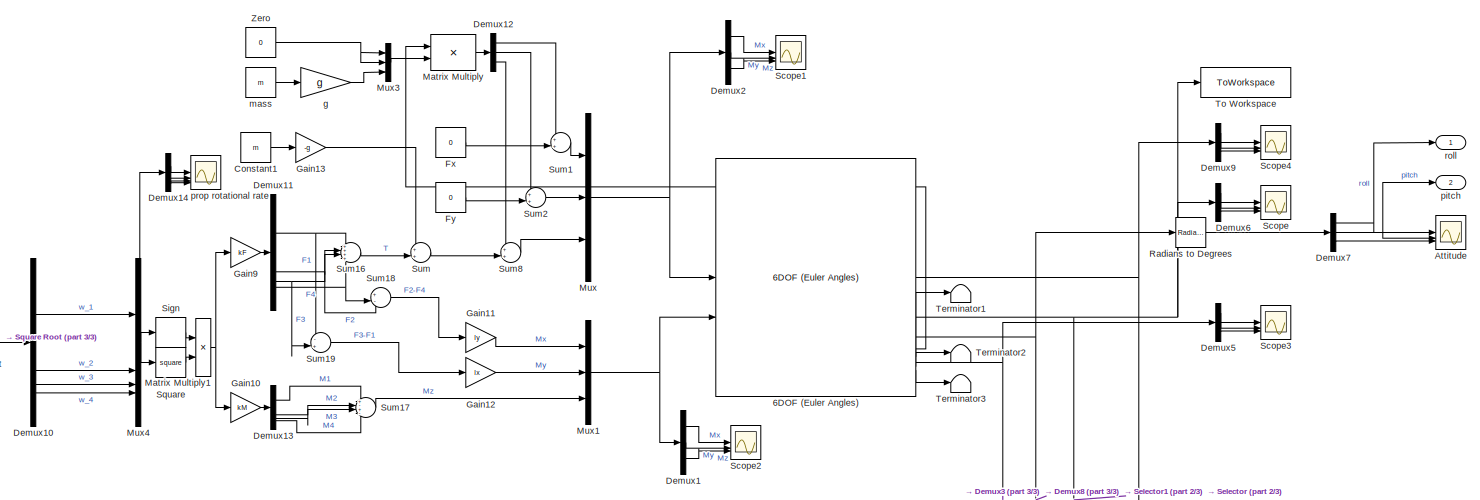
[diagram: root canvas - part 1/3, middle right region]
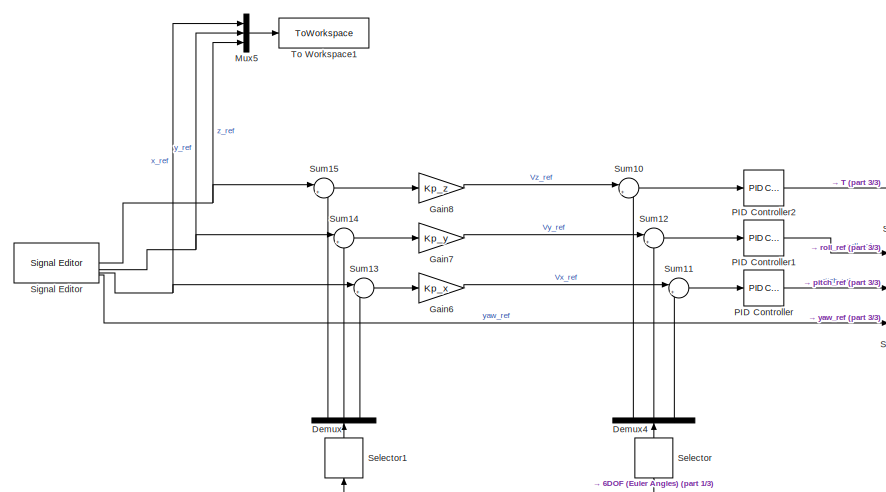
[diagram: root canvas - part 2/3, middle left region]
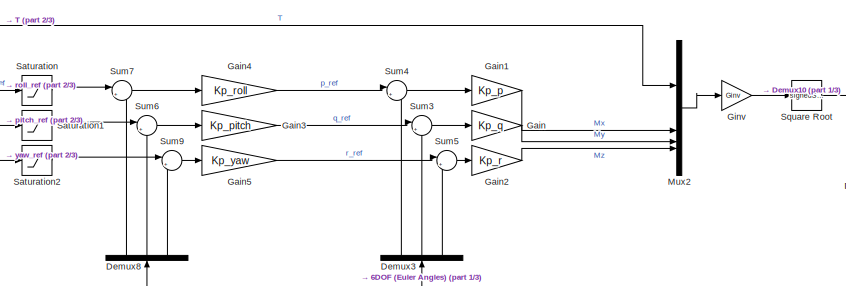
[diagram: root canvas - part 3/3, central region]
MODEL slx_acef34b69b9c
KIND model
CONFIG AbsTol = auto
CONFIG EnableMultiTasking = off
CONFIG FixedStep = 0.01
CONFIG MaxStep = auto
CONFIG MinStep = auto
CONFIG RelTol = 1e-3
CONFIG SampleTimeConstraint = Unconstrained
CONFIG SolverName = FixedStepAuto
CONFIG StartTime = 0.0
CONFIG StopTime = 10
BLOCK [Reference] 6DOF (Euler Angles)  REF=shared6dof/6DOF (Euler Angles)
  LibrarySourceBlock = aerolib6dof2/6DOF (Euler Angles)
  SourceBlock = shared6dof/6DOF (Euler Angles)
  SourceType = 6DOF EoM (Body Axis)
BLOCK [Scope] Attitude
  Floating = off
  NumInputPorts = 3
  ScopeSpecificationString = Simulink.scopes.TimeScopeBlockCfg('CurrentConfiguration', extmgr.ConfigurationSet(extmgr.Configuration('Core','General UI',true),extmgr.Configuration('Core','Source UI',true),extmgr.Configuration('Sources','WiredSimulink',true,'DataLoggingVariableName','ScopeData1'),extmgr.Configuration('Visuals','Time Domain',true,'SerializedDisplays',{struct('MinYLimReal','-75.87056','MaxYLimReal','76.82892','YL...<+2775ch>
BLOCK [Constant] Constant1
  Value = m
BLOCK [Demux] Demux
  NameLocation = right
  Outputs = 3
BLOCK [Demux] Demux1
  Outputs = 3
BLOCK [Demux] Demux10
BLOCK [Demux] Demux11
BLOCK [Demux] Demux12
  Outputs = 3
BLOCK [Demux] Demux13
BLOCK [Demux] Demux14
BLOCK [Demux] Demux2
  Outputs = 3
BLOCK [Demux] Demux3
  NameLocation = right
  Outputs = 3
BLOCK [Demux] Demux4
  NameLocation = right
  Outputs = 3
BLOCK [Demux] Demux5
  Outputs = 3
BLOCK [Demux] Demux6
  Outputs = 3
BLOCK [Demux] Demux7
  Outputs = 3
BLOCK [Demux] Demux8
  NameLocation = right
  Outputs = 3
BLOCK [Demux] Demux9
  Outputs = 3
BLOCK [Constant] Fx
  Value = 0
BLOCK [Constant] Fy
  Value = 0
BLOCK [Gain] Gain
  Gain = Kp_q
BLOCK [Gain] Gain1
  Gain = Kp_p
BLOCK [Gain] Gain10
  Gain = kM
BLOCK [Gain] Gain11
  Gain = ly
BLOCK [Gain] Gain12
  Gain = lx
BLOCK [Gain] Gain13
  Gain = -g
BLOCK [Gain] Gain2
  Gain = Kp_r
BLOCK [Gain] Gain3
  Gain = Kp_pitch
BLOCK [Gain] Gain4
  Gain = Kp_roll
BLOCK [Gain] Gain5
  Gain = Kp_yaw
BLOCK [Gain] Gain6
  Gain = Kp_x
BLOCK [Gain] Gain7
  Gain = Kp_y
BLOCK [Gain] Gain8
  Gain = Kp_z
BLOCK [Gain] Gain9
  Gain = kF
BLOCK [Gain] Ginv
  Gain = Ginv
  Multiplication = Matrix(K*u)
BLOCK [Product] Matrix Multiply
  Inputs = **
  Multiplication = Matrix(*)
BLOCK [Product] Matrix Multiply1
BLOCK [Mux] Mux
  DisplayOption = bar
  Inputs = 3
BLOCK [Mux] Mux1
  DisplayOption = bar
  Inputs = 3
BLOCK [Mux] Mux2
  DisplayOption = bar
BLOCK [Mux] Mux3
  DisplayOption = bar
  Inputs = 3
BLOCK [Mux] Mux4
  DisplayOption = bar
BLOCK [Mux] Mux5
  DisplayOption = bar
  Inputs = 3
BLOCK [Reference] PID Controller  REF=slpidlib/PID Controller
  LibrarySourceBlock = simulink/Continuous/PID Controller
  SourceBlock = slpidlib/PID Controller
  SourceType = PID 1dof
BLOCK [Reference] PID Controller1  REF=slpidlib/PID Controller
  LibrarySourceBlock = simulink/Continuous/PID Controller
  SourceBlock = slpidlib/PID Controller
  SourceType = PID 1dof
BLOCK [Reference] PID Controller2  REF=slpidlib/PID Controller
  LibrarySourceBlock = simulink/Continuous/PID Controller
  SourceBlock = slpidlib/PID Controller
  SourceType = PID 1dof
BLOCK [Reference] Radians to Degrees  REF=simulink_extras/Transformations/Radians
to Degrees
  SourceBlock = simulink_extras/Transformations/Radians\nto Degrees
  SourceType = RadiansToDegrees
BLOCK [Saturate] Saturation
  LowerLimit = -pi/4
  UpperLimit = pi/4
BLOCK [Saturate] Saturation1
  LowerLimit = -pi/4
  UpperLimit = pi/4
BLOCK [Saturate] Saturation2
  LowerLimit = -pi
  UpperLimit = pi
BLOCK [Scope] Scope
  Floating = off
  NumInputPorts = 3
  ScopeSpecificationString = Simulink.scopes.TimeScopeBlockCfg('CurrentConfiguration', extmgr.ConfigurationSet(extmgr.Configuration('Core','General UI',true),extmgr.Configuration('Core','Source UI',true),extmgr.Configuration('Sources','WiredSimulink',true,'DataLoggingVariableName','ScopeData1'),extmgr.Configuration('Visuals','Time Domain',true,'SerializedDisplays',{struct('MinYLimReal','-0.3931','MaxYLimReal','3.5379','YLabel...<+2775ch>
BLOCK [Scope] Scope1
  Floating = off
  NumInputPorts = 3
  ScopeSpecificationString = Simulink.scopes.TimeScopeBlockCfg('CurrentConfiguration', extmgr.ConfigurationSet(extmgr.Configuration('Core','General UI',true),extmgr.Configuration('Core','Source UI',true),extmgr.Configuration('Sources','WiredSimulink',true,'DataLoggingVariableName','ScopeData1'),extmgr.Configuration('Visuals','Time Domain',true,'SerializedDisplays',{struct('MinYLimReal','-415.04945','MaxYLimReal','570.84994','...<+2965ch>
BLOCK [Scope] Scope2
  Floating = off
  NumInputPorts = 3
  ScopeSpecificationString = Simulink.scopes.TimeScopeBlockCfg('CurrentConfiguration', extmgr.ConfigurationSet(extmgr.Configuration('Core','General UI',true),extmgr.Configuration('Core','Source UI',true),extmgr.Configuration('Sources','WiredSimulink',true,'DataLoggingVariableName','ScopeData2'),extmgr.Configuration('Visuals','Time Domain',true,'SerializedDisplays',{struct('MinYLimReal','-101.61688','MaxYLimReal','101.61688','...<+1521ch>
BLOCK [Scope] Scope3
  Floating = off
  NumInputPorts = 3
  ScopeSpecificationString = Simulink.scopes.TimeScopeBlockCfg('CurrentConfiguration', extmgr.ConfigurationSet(extmgr.Configuration('Core','General UI',true),extmgr.Configuration('Core','Source UI',true),extmgr.Configuration('Sources','WiredSimulink',true,'DataLoggingVariableName','ScopeData1'),extmgr.Configuration('Visuals','Time Domain',true,'SerializedDisplays',{struct('MinYLimReal','-4.12012','MaxYLimReal','6.72803','YLab...<+2752ch>
BLOCK [Scope] Scope4
  Floating = off
  NumInputPorts = 3
  ScopeSpecificationString = Simulink.scopes.TimeScopeBlockCfg('CurrentConfiguration', extmgr.ConfigurationSet(extmgr.Configuration('Core','General UI',true),extmgr.Configuration('Core','Source UI',true),extmgr.Configuration('Sources','WiredSimulink',true,'DataLoggingVariableName','ScopeData2'),extmgr.Configuration('Visuals','Time Domain',true,'SerializedDisplays',{struct('MinYLimReal','-0.3508','MaxYLimReal','2.24549','YLabe...<+2750ch>
BLOCK [Selector] Selector
  IndexOptions = Index vector (dialog)
  Indices = [3 2 1]
  InputPortWidth = 3
  NameLocation = right
  OutputSizes = 1
BLOCK [Selector] Selector1
  IndexOptions = Index vector (dialog)
  Indices = [3 2 1]
  InputPortWidth = 3
  NameLocation = right
  OutputSizes = 1
BLOCK [Signum] Sign
BLOCK [Reference] Signal Editor  REF=SignalEditorBlockLib/Signal Editor
  LibrarySourceBlock = simulink/Sources/Signal Editor
  SourceBlock = SignalEditorBlockLib/Signal Editor
  SourceType = SignalEditor
  UserDataPersistent = on
BLOCK [Math] Square
  Operator = square
BLOCK [Sqrt] Square Root
  Operator = signedSqrt
  OutputSignalType = real
BLOCK [Sum] Sum
  Inputs = ++|
BLOCK [Sum] Sum1
  Inputs = ++|
BLOCK [Sum] Sum10
  Inputs = |+-
BLOCK [Sum] Sum11
  Inputs = |+-
BLOCK [Sum] Sum12
  Inputs = |+-
BLOCK [Sum] Sum13
  Inputs = |+-
BLOCK [Sum] Sum14
  Inputs = |+-
BLOCK [Sum] Sum15
  Inputs = |+-
BLOCK [Sum] Sum16
  Inputs = ++++
BLOCK [Sum] Sum17
  Inputs = +-+-
BLOCK [Sum] Sum18
  Inputs = +-|
BLOCK [Sum] Sum19
  Inputs = -+|
BLOCK [Sum] Sum2
  Inputs = ++|
BLOCK [Sum] Sum3
  Inputs = |+-
BLOCK [Sum] Sum4
  Inputs = |+-
BLOCK [Sum] Sum5
  Inputs = |+-
BLOCK [Sum] Sum6
  Inputs = |+-
BLOCK [Sum] Sum7
  Inputs = |+-
BLOCK [Sum] Sum8
  Inputs = ++|
BLOCK [Sum] Sum9
  Inputs = |+-
BLOCK [Terminator] Terminator1
BLOCK [Terminator] Terminator2
BLOCK [Terminator] Terminator3
BLOCK [ToWorkspace] To Workspace
  FixptAsFi = on
  MaxDataPoints = inf
  SampleTime = -1
  SaveFormat = Timeseries
  VariableName = output
BLOCK [ToWorkspace] To Workspace1
  FixptAsFi = on
  MaxDataPoints = inf
  SampleTime = -1
  SaveFormat = Timeseries
  VariableName = reference
BLOCK [Constant] Zero
  OutDataTypeStr = Inherit: Inherit via back propagation
  Value = 0
BLOCK [Gain] g
  Gain = g
BLOCK [Constant] mass
  Value = m
BLOCK [Outport] pitch
  Port = 2
BLOCK [Scope] prop rotational rate
  Floating = off
  NumInputPorts = 4
  ScopeSpecificationString = Simulink.scopes.TimeScopeBlockCfg('CurrentConfiguration', extmgr.ConfigurationSet(extmgr.Configuration('Core','General UI',true),extmgr.Configuration('Core','Source UI',true),extmgr.Configuration('Sources','WiredSimulink',true,'DataLoggingVariableName','ScopeData1'),extmgr.Configuration('Visuals','Time Domain',true,'SerializedDisplays',{struct('MinYLimReal','-4.16863','MaxYLimReal','8.15459','YLab...<+3581ch>
BLOCK [Outport] roll
NET 6DOF (Euler Angles):1 -> Demux9:1, Selector:1
NET 6DOF (Euler Angles):2 -> Demux6:1, Selector1:1, To Workspace:1
NET 6DOF (Euler Angles):3 -> Demux8:1, Radians to Degrees:1
LINE 6DOF (Euler Angles):4 -> Matrix Multiply:1
LINE 6DOF (Euler Angles):5 -> Terminator1:1
NET 6DOF (Euler Angles):6 -> Demux3:1, Demux5:1
LINE 6DOF (Euler Angles):7 -> Terminator2:1
LINE 6DOF (Euler Angles):8 -> Terminator3:1
LINE Constant1:1 -> Gain13:1
LINE Demux10:1 -> Mux4:1
LINE Demux10:2 -> Mux4:2
LINE Demux10:3 -> Mux4:3
LINE Demux10:4 -> Mux4:4
NET Demux11:1 -> Sum16:1, Sum19:1
NET Demux11:2 -> Sum16:2, Sum18:1
NET Demux11:3 -> Sum16:3, Sum19:2
NET Demux11:4 -> Sum16:4, Sum18:2
LINE Demux12:1 -> Sum1:1
LINE Demux12:2 -> Sum2:1
LINE Demux12:3 -> Sum8:1
LINE Demux13:1 -> Sum17:1
LINE Demux13:2 -> Sum17:2
LINE Demux13:3 -> Sum17:3
LINE Demux13:4 -> Sum17:4
LINE Demux14:1 -> prop rotational rate:1
LINE Demux14:2 -> prop rotational rate:2
LINE Demux14:3 -> prop rotational rate:3
LINE Demux14:4 -> prop rotational rate:4
LINE Demux1:1 -> Scope2:1
LINE Demux1:2 -> Scope2:2
LINE Demux1:3 -> Scope2:3
LINE Demux2:1 -> Scope1:1
LINE Demux2:2 -> Scope1:2
LINE Demux2:3 -> Scope1:3
LINE Demux3:1 -> Sum4:2
LINE Demux3:2 -> Sum3:2
LINE Demux3:3 -> Sum5:2
LINE Demux4:1 -> Sum10:2
LINE Demux4:2 -> Sum12:2
LINE Demux4:3 -> Sum11:2
LINE Demux5:1 -> Scope3:1
LINE Demux5:2 -> Scope3:2
LINE Demux5:3 -> Scope3:3
LINE Demux6:1 -> Scope:1
LINE Demux6:2 -> Scope:2
LINE Demux6:3 -> Scope:3
NET Demux7:1 -> Attitude:1, roll:1
NET Demux7:2 -> Attitude:2, pitch:1
LINE Demux7:3 -> Attitude:3
LINE Demux8:1 -> Sum7:2
LINE Demux8:2 -> Sum6:2
LINE Demux8:3 -> Sum9:2
LINE Demux9:1 -> Scope4:1
LINE Demux9:2 -> Scope4:2
LINE Demux9:3 -> Scope4:3
LINE Demux:1 -> Sum15:2
LINE Demux:2 -> Sum14:2
LINE Demux:3 -> Sum13:2
LINE Fx:1 -> Sum1:2
LINE Fy:1 -> Sum2:2
LINE Gain10:1 -> Demux13:1
LINE Gain11:1 -> Mux1:1
LINE Gain12:1 -> Mux1:2
LINE Gain13:1 -> Sum:1
LINE Gain1:1 -> Mux2:2
LINE Gain2:1 -> Mux2:4
LINE Gain3:1 -> Sum3:1
LINE Gain4:1 -> Sum4:1
LINE Gain5:1 -> Sum5:1
LINE Gain6:1 -> Sum11:1
LINE Gain7:1 -> Sum12:1
LINE Gain8:1 -> Sum10:1
LINE Gain9:1 -> Demux11:1
LINE Gain:1 -> Mux2:3
LINE Ginv:1 -> Square Root:1
NET Matrix Multiply1:1 -> Gain10:1, Gain9:1
LINE Matrix Multiply:1 -> Demux12:1
NET Mux1:1 -> 6DOF (Euler Angles):2, Demux1:1
LINE Mux2:1 -> Ginv:1
LINE Mux3:1 -> Matrix Multiply:2
NET Mux4:1 -> Demux14:1, Sign:1, Square:1
LINE Mux5:1 -> To Workspace1:1
NET Mux:1 -> 6DOF (Euler Angles):1, Demux2:1
LINE PID Controller1:1 -> Saturation:1
LINE PID Controller2:1 -> Mux2:1
LINE PID Controller:1 -> Saturation1:1
LINE Radians to Degrees:1 -> Demux7:1
LINE Saturation1:1 -> Sum6:1
LINE Saturation2:1 -> Sum9:1
LINE Saturation:1 -> Sum7:1
LINE Selector1:1 -> Demux:1
LINE Selector:1 -> Demux4:1
LINE Sign:1 -> Matrix Multiply1:1
NET Signal Editor:1 -> Mux5:3, Sum15:1
NET Signal Editor:2 -> Mux5:2, Sum14:1
NET Signal Editor:3 -> Mux5:1, Sum13:1
LINE Signal Editor:4 -> Saturation2:1
LINE Square Root:1 -> Demux10:1
LINE Square:1 -> Matrix Multiply1:2
LINE Sum10:1 -> PID Controller2:1
LINE Sum11:1 -> PID Controller:1
LINE Sum12:1 -> PID Controller1:1
LINE Sum13:1 -> Gain6:1
LINE Sum14:1 -> Gain7:1
LINE Sum15:1 -> Gain8:1
LINE Sum16:1 -> Sum:2
LINE Sum17:1 -> Mux1:3
LINE Sum18:1 -> Gain11:1
LINE Sum19:1 -> Gain12:1
LINE Sum1:1 -> Mux:1
LINE Sum2:1 -> Mux:2
LINE Sum3:1 -> Gain:1
LINE Sum4:1 -> Gain1:1
LINE Sum5:1 -> Gain2:1
LINE Sum6:1 -> Gain3:1
LINE Sum7:1 -> Gain4:1
LINE Sum8:1 -> Mux:3
LINE Sum9:1 -> Gain5:1
LINE Sum:1 -> Sum8:2
NET Zero:1 -> Mux3:1, Mux3:2
LINE g:1 -> Mux3:3
LINE mass:1 -> g:1
note: NET lines group one-source signal fan-out (src -> all destinations, sorted); 1:1 wires keep LINE
